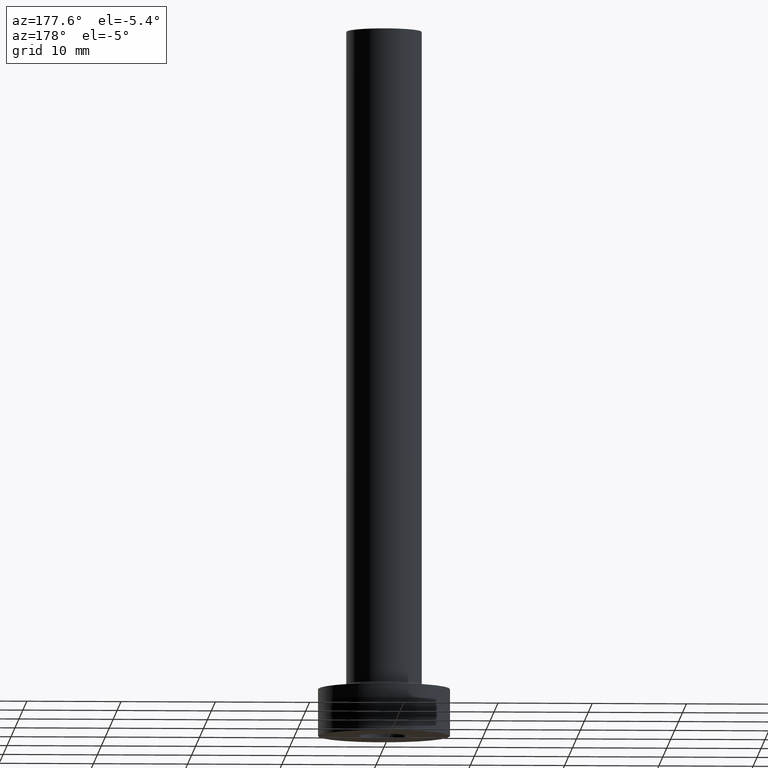
[diagram: clean part render]
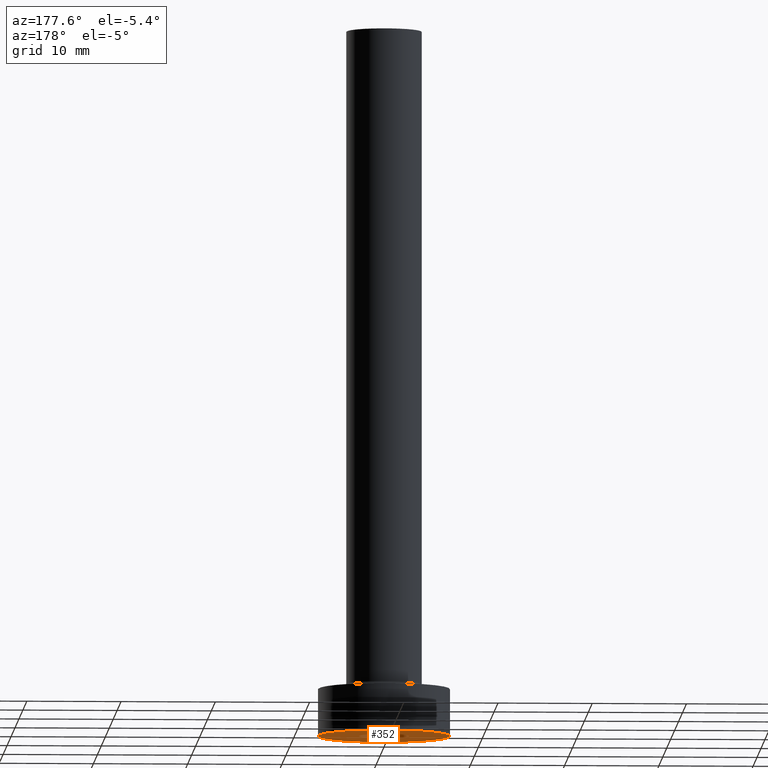
[diagram: same view with one face highlighted and labeled with its STEP entity id]
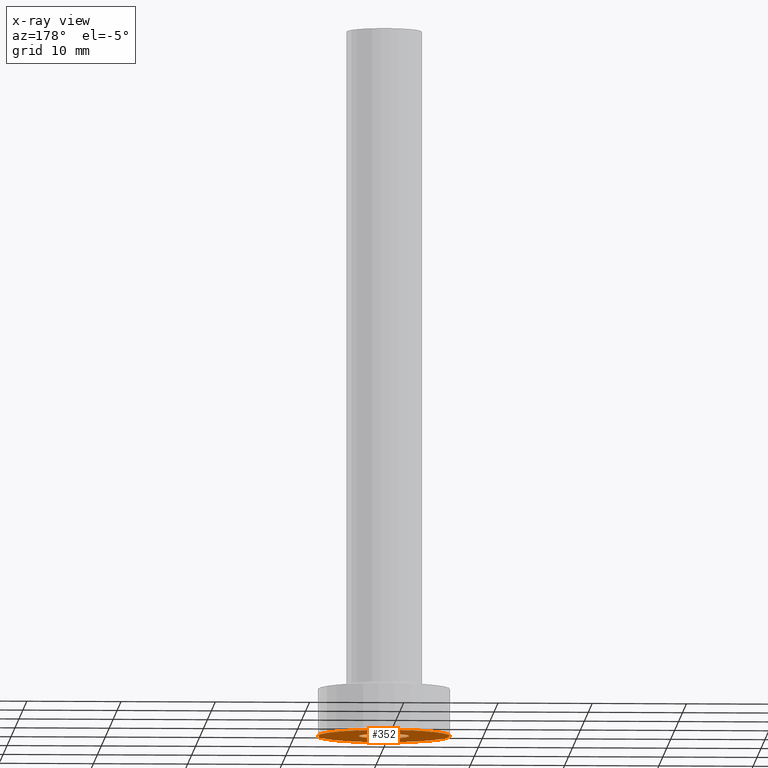
[diagram: x-ray of the same camera — body ghosted, the highlighted face saturated]
A machine part, auxiliary view. The second image highlights one B-rep face of the part: STEP entity #352.
The next image is the same camera in x-ray: the body ghosted, the highlighted face saturated — about 0% of this face is hidden behind the body in this view.
In plain terms, the highlighted planar face has unit normal (0, 0, 1).
Its self-contained STEP definition (entity closure, byte-faithful):
#3 = CARTESIAN_POINT ( 'NONE',  ( 0.000000000000000000, 0.000000000000000000, 0.000000000000000000 ) ) ;
#4 = DIRECTION ( 'NONE',  ( -0.000000000000000000, -0.000000000000000000, -1.000000000000000000 ) ) ;
#9 = CIRCLE ( 'NONE', #282, 2.649999999999999911 ) ;
#26 = CIRCLE ( 'NONE', #73, 2.649999999999999911 ) ;
#39 = DIRECTION ( 'NONE',  ( 0.000000000000000000, 0.000000000000000000, 1.000000000000000000 ) ) ;
#42 = CARTESIAN_POINT ( 'NONE',  ( 0.000000000000000000, 0.000000000000000000, 0.000000000000000000 ) ) ;
#49 = ORIENTED_EDGE ( 'NONE', *, *, #420, .F. ) ;
#65 = AXIS2_PLACEMENT_3D ( 'NONE', #104, #69, #147 ) ;
#66 = VERTEX_POINT ( 'NONE', #387 ) ;
#69 = DIRECTION ( 'NONE',  ( 0.000000000000000000, 0.000000000000000000, 1.000000000000000000 ) ) ;
#72 = CARTESIAN_POINT ( 'NONE',  ( -7.000000000000000000, 0.000000000000000000, 0.000000000000000000 ) ) ;
#73 = AXIS2_PLACEMENT_3D ( 'NONE', #3, #4, #79 ) ;
#79 = DIRECTION ( 'NONE',  ( 1.000000000000000000, 0.000000000000000000, 0.000000000000000000 ) ) ;
#89 = ORIENTED_EDGE ( 'NONE', *, *, #273, .F. ) ;
#104 = CARTESIAN_POINT ( 'NONE',  ( 0.000000000000000000, 0.000000000000000000, 0.000000000000000000 ) ) ;
#121 = CIRCLE ( 'NONE', #140, 7.000000000000000000 ) ;
#127 = CARTESIAN_POINT ( 'NONE',  ( 7.000000000000000000, 8.572527594031473190E-16, 0.000000000000000000 ) ) ;
#137 = ORIENTED_EDGE ( 'NONE', *, *, #421, .F. ) ;
#140 = AXIS2_PLACEMENT_3D ( 'NONE', #211, #39, #221 ) ;
#144 = FACE_OUTER_BOUND ( 'NONE', #442, .T. ) ;
#147 = DIRECTION ( 'NONE',  ( 1.000000000000000000, 0.000000000000000000, -0.000000000000000000 ) ) ;
#153 = DIRECTION ( 'NONE',  ( -0.000000000000000000, -0.000000000000000000, -1.000000000000000000 ) ) ;
#177 = EDGE_LOOP ( 'NONE', ( #49, #89 ) ) ;
#186 = CARTESIAN_POINT ( 'NONE',  ( 0.000000000000000000, 0.000000000000000000, 0.000000000000000000 ) ) ;
#197 = VERTEX_POINT ( 'NONE', #127 ) ;
#205 = VERTEX_POINT ( 'NONE', #388 ) ;
#211 = CARTESIAN_POINT ( 'NONE',  ( 0.000000000000000000, 0.000000000000000000, 0.000000000000000000 ) ) ;
#221 = DIRECTION ( 'NONE',  ( 1.000000000000000000, 0.000000000000000000, 0.000000000000000000 ) ) ;
#234 = EDGE_CURVE ( 'NONE', #197, #354, #303, .T. ) ;
#246 = FACE_BOUND ( 'NONE', #177, .T. ) ;
#252 = PLANE ( 'NONE',  #65 ) ;
#273 = EDGE_CURVE ( 'NONE', #66, #205, #26, .T. ) ;
#282 = AXIS2_PLACEMENT_3D ( 'NONE', #186, #153, #403 ) ;
#303 = CIRCLE ( 'NONE', #355, 7.000000000000000000 ) ;
#320 = ORIENTED_EDGE ( 'NONE', *, *, #234, .F. ) ;
#323 = DIRECTION ( 'NONE',  ( 0.000000000000000000, 0.000000000000000000, 1.000000000000000000 ) ) ;
#352 = ADVANCED_FACE ( 'NONE', ( #246, #144 ), #252, .F. ) ;
#354 = VERTEX_POINT ( 'NONE', #72 ) ;
#355 = AXIS2_PLACEMENT_3D ( 'NONE', #42, #323, #429 ) ;
#387 = CARTESIAN_POINT ( 'NONE',  ( 2.649999999999999911, 3.245314017740485469E-16, 0.000000000000000000 ) ) ;
#388 = CARTESIAN_POINT ( 'NONE',  ( -2.649999999999999911, 0.000000000000000000, 0.000000000000000000 ) ) ;
#403 = DIRECTION ( 'NONE',  ( 1.000000000000000000, 0.000000000000000000, 0.000000000000000000 ) ) ;
#420 = EDGE_CURVE ( 'NONE', #205, #66, #9, .T. ) ;
#421 = EDGE_CURVE ( 'NONE', #354, #197, #121, .T. ) ;
#429 = DIRECTION ( 'NONE',  ( 1.000000000000000000, 0.000000000000000000, 0.000000000000000000 ) ) ;
#442 = EDGE_LOOP ( 'NONE', ( #137, #320 ) ) ;